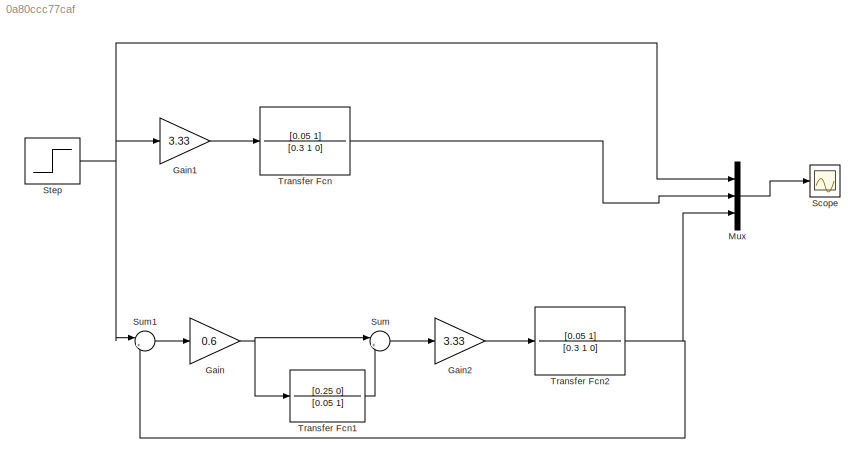
MODEL slx_0a80ccc77caf
KIND model
CONFIG AbsTol = auto
CONFIG EnableMultiTasking = off
CONFIG FixedStep = auto
CONFIG MaxStep = auto
CONFIG MinStep = auto
CONFIG RelTol = 1e-3
CONFIG SampleTimeConstraint = Unconstrained
CONFIG SolverName = VariableStepAuto
CONFIG StartTime = 0.0
CONFIG StopTime = 10.0
BLOCK [Gain] Gain
  Gain = 0.6
BLOCK [Gain] Gain1
  Gain = 3.33
BLOCK [Gain] Gain2
  Gain = 3.33
BLOCK [Mux] Mux
  DisplayOption = bar
  Inputs = 3
BLOCK [Scope] Scope
  Floating = off
  NumInputPorts = 1
  ScopeSpecificationString = Simulink.scopes.TimeScopeBlockCfg('CurrentConfiguration', extmgr.ConfigurationSet(extmgr.Configuration('Core','General UI',true,'FigureColor',[1 1 1]),extmgr.Configuration('Core','Source UI',true),extmgr.Configuration('Sources','WiredSimulink',true),extmgr.Configuration('Visuals','Time Domain',true,'SerializedDisplays',{struct('MinYLimReal','0.06321','MaxYLimReal','1.44699','YLabelReal','','MinYLi...<+1531ch>
BLOCK [Step] Step
  SampleTime = 0
BLOCK [Sum] Sum
  Inputs = |++
BLOCK [Sum] Sum1
  Inputs = |+-
BLOCK [TransferFcn] Transfer Fcn
  Denominator = [0.3 1 0]
  Numerator = [0.05 1]
BLOCK [TransferFcn] Transfer Fcn1
  Denominator = [0.05 1]
  Numerator = [0.25 0]
BLOCK [TransferFcn] Transfer Fcn2
  Denominator = [0.3 1 0]
  Numerator = [0.05 1]
LINE Gain1:1 -> Transfer Fcn:1
LINE Gain2:1 -> Transfer Fcn2:1
NET Gain:1 -> Sum:1, Transfer Fcn1:1
LINE Mux:1 -> Scope:1
NET Step:1 -> Gain1:1, Mux:1, Sum1:1
LINE Sum1:1 -> Gain:1
LINE Sum:1 -> Gain2:1
LINE Transfer Fcn1:1 -> Sum:2
NET Transfer Fcn2:1 -> Mux:3, Sum1:2
LINE Transfer Fcn:1 -> Mux:2
note: NET lines group one-source signal fan-out (src -> all destinations, sorted); 1:1 wires keep LINE
